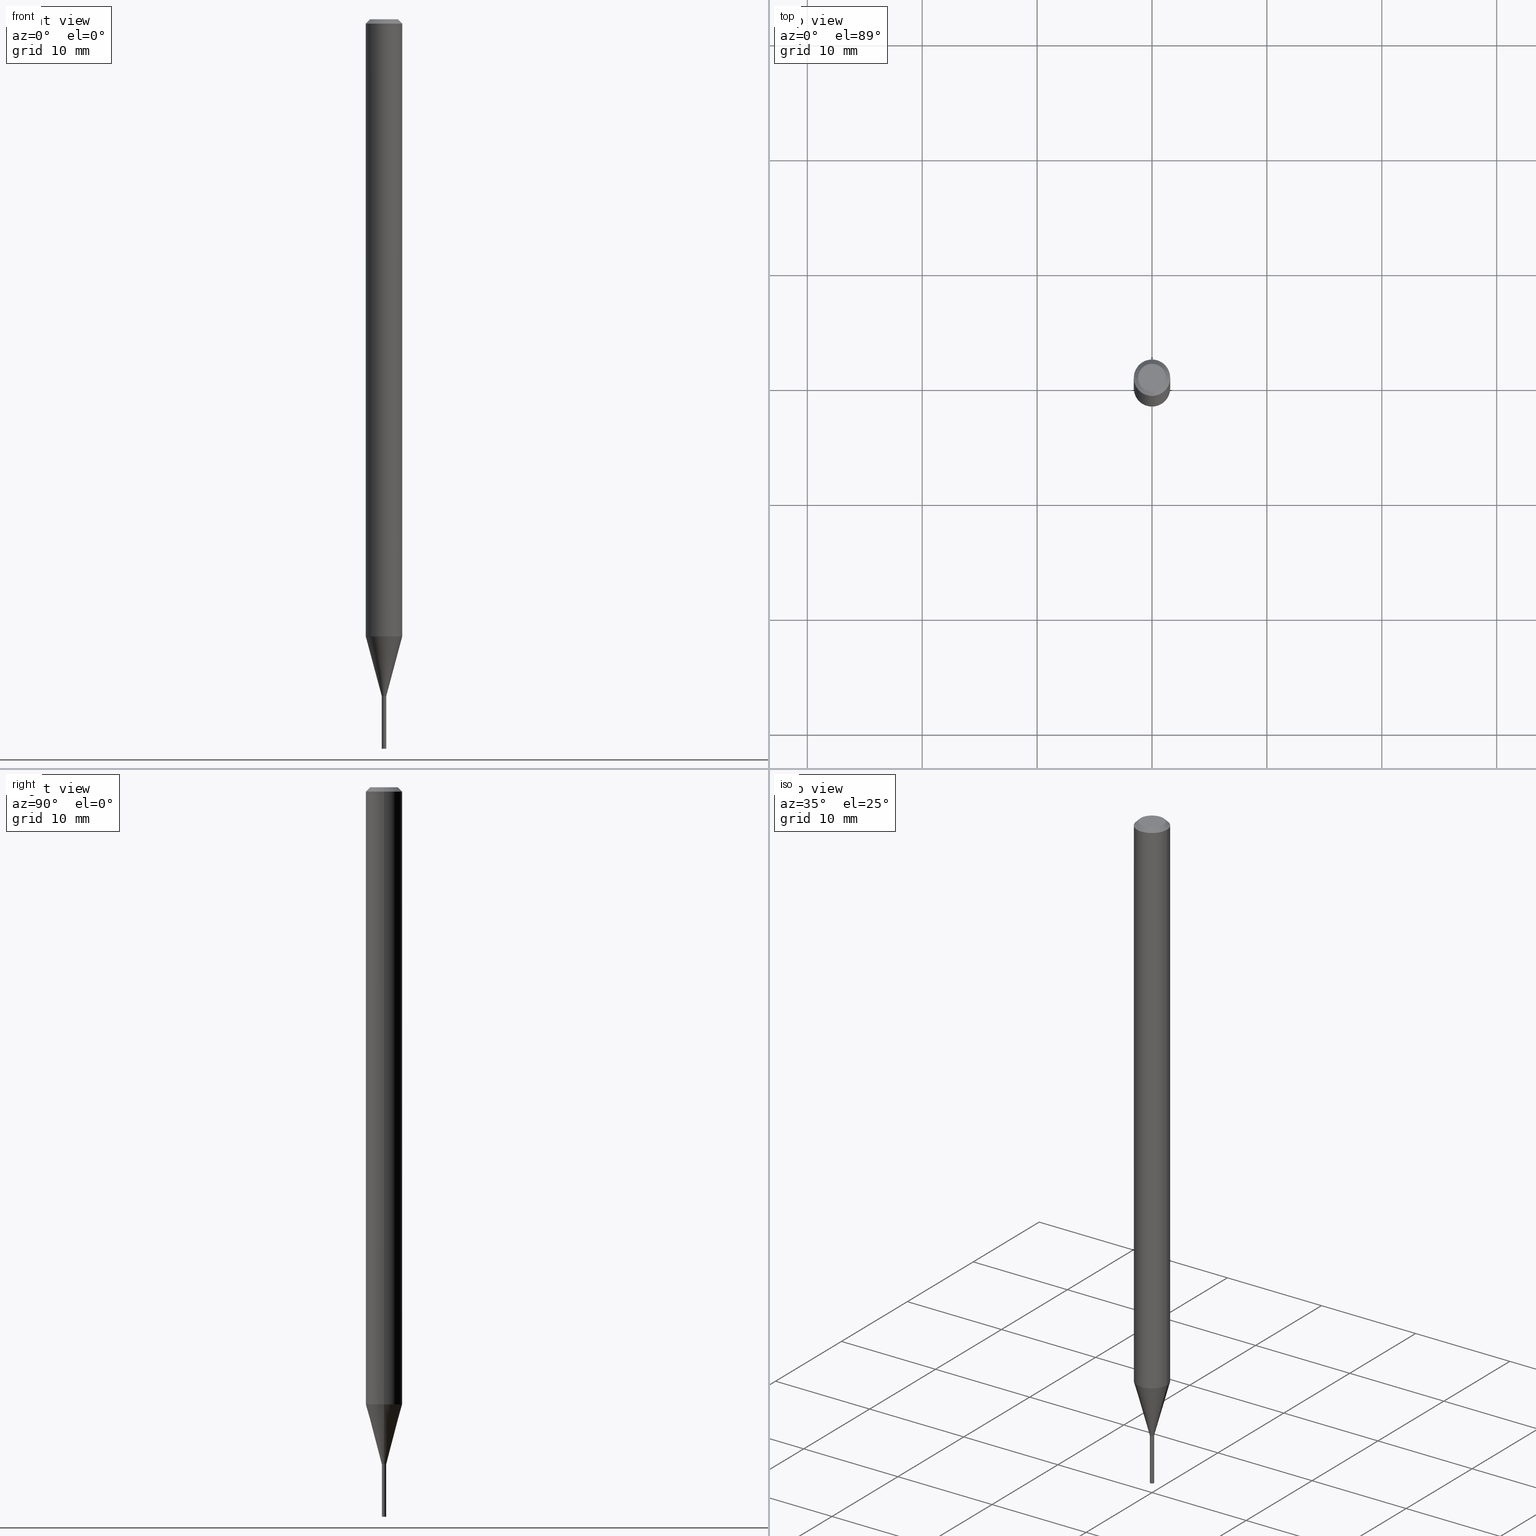
[diagram: canonical four-view strip — front | top / right | iso, engineering-drawing reading convention]
A machine part, canonical four-view strip (front | top / right | iso — engineering-drawing reading convention). The complete STEP part file that produces these views, byte-faithful:
ISO-10303-21;
HEADER;
FILE_DESCRIPTION (( 'STEP AP203' ),
    '1' );
FILE_NAME ('01284.STEP',
    '2024-03-20T01:00:24',
    ( '' ),
    ( '' ),
    'SwSTEP 2.0',
    'SolidWorks 2023',
    '' );
FILE_SCHEMA (( 'CONFIG_CONTROL_DESIGN' ));
ENDSEC;

DATA;
#1 = LINE ( 'NONE', #72, #92 ) ;
#2 = AXIS2_PLACEMENT_3D ( 'NONE', #395, #88, #362 ) ;
#3 = DIRECTION ( 'NONE',  ( -2.438088387897960049E-29, 3.491481338843145188E-15, 1.000000000000000000 ) ) ;
#4 = ORIENTED_EDGE ( 'NONE', *, *, #237, .T. ) ;
#5 = EDGE_CURVE ( 'NONE', #52, #48, #366, .T. ) ;
#6 = ORIENTED_EDGE ( 'NONE', *, *, #412, .T. ) ;
#7 = DESIGN_CONTEXT ( 'detailed design', #56, 'design' ) ;
#8 = ADVANCED_BREP_SHAPE_REPRESENTATION ( '01284', ( #394, #238, #276 ), #250 ) ;
#9 = ORIENTED_EDGE ( 'NONE', *, *, #178, .F. ) ;
#10 = CLOSED_SHELL ( 'NONE', ( #400, #359, #355, #435, #353, #138, #390, #71, #195, #382, #160, #449 ) ) ;
#11 = CC_DESIGN_PERSON_AND_ORGANIZATION_ASSIGNMENT ( #380, #137, ( #49 ) ) ;
#12 = CARTESIAN_POINT ( 'NONE',  ( -6.929522310536673502E-44, 9.893521345740843452E-30, 2.833617134273135482E-15 ) ) ;
#13 = ORIENTED_EDGE ( 'NONE', *, *, #450, .F. ) ;
#14 = EDGE_CURVE ( 'NONE', #329, #48, #350, .T. ) ;
#15 = ORIENTED_EDGE ( 'NONE', *, *, #450, .T. ) ;
#16 = CARTESIAN_POINT ( 'NONE',  ( -0.06250000000000000000, -6.939476280002764549E-15, -2.114737205583710811 ) ) ;
#17 = ORIENTED_EDGE ( 'NONE', *, *, #304, .F. ) ;
#18 = CC_DESIGN_APPROVAL ( #397, ( #333 ) ) ;
#19 = DIRECTION ( 'NONE',  ( 0.000000000000000000, 0.000000000000000000, 1.000000000000000000 ) ) ;
#20 = CARTESIAN_POINT ( 'NONE',  ( 5.673487630349515918E-29, -8.100236706116096837E-15, -2.319999999999999840 ) ) ;
#21 = DIRECTION ( 'NONE',  ( -1.000000000000000000, 6.982962677686266711E-15, 0.000000000000000000 ) ) ;
#22 = CARTESIAN_POINT ( 'NONE',  ( 0.000000000000000000, 0.000000000000000000, 0.000000000000000000 ) ) ;
#23 = AXIS2_PLACEMENT_3D ( 'NONE', #180, #3, #187 ) ;
#24 = FACE_OUTER_BOUND ( 'NONE', #191, .T. ) ;
#25 = CARTESIAN_POINT ( 'NONE',  ( 5.673487630349517039E-29, -8.100236706116098414E-15, -2.320000000000000284 ) ) ;
#26 = FACE_OUTER_BOUND ( 'NONE', #297, .T. ) ;
#27 = CARTESIAN_POINT ( 'NONE',  ( 5.673487630349515918E-29, -8.100236706116096837E-15, -2.319999999999999840 ) ) ;
#28 = APPROVAL_STATUS ( 'not_yet_approved' ) ;
#29 = CLOSED_SHELL ( 'NONE', ( #170, #418, #332, #176 ) ) ;
#30 = DIRECTION ( 'NONE',  ( -2.445468806185136597E-29, 3.491481338843145583E-15, 1.000000000000000000 ) ) ;
#31 = AXIS2_PLACEMENT_3D ( 'NONE', #226, #190, #328 ) ;
#32 = APPLICATION_CONTEXT ( 'configuration controlled 3d designs of mechanical parts and assemblies' ) ;
#33 = EDGE_LOOP ( 'NONE', ( #91, #420 ) ) ;
#34 = APPROVAL_ROLE ( '' ) ;
#35 = ORIENTED_EDGE ( 'NONE', *, *, #376, .T. ) ;
#36 = CARTESIAN_POINT ( 'NONE',  ( -0.007499999999999999722, -8.361179321429973723E-15, -2.320000000000000284 ) ) ;
#37 = PERSON_AND_ORGANIZATION_ROLE ( 'design_supplier' ) ;
#38 = DIRECTION ( 'NONE',  ( 0.7071067811864807373, -7.319954787623030431E-15, -0.7071067811866142971 ) ) ;
#39 = APPROVAL_PERSON_ORGANIZATION ( #175, #284, #246 ) ;
#40 = CIRCLE ( 'NONE', #224, 0.04749999999999999362 ) ;
#41 = PLANE ( 'NONE',  #2 ) ;
#42 = ORIENTED_EDGE ( 'NONE', *, *, #171, .F. ) ;
#43 = CC_DESIGN_DATE_AND_TIME_ASSIGNMENT ( #455, #313, ( #80 ) ) ;
#44 = CARTESIAN_POINT ( 'NONE',  ( 5.171523869534089269E-29, -7.383565489852826376E-15, -2.114737205583710811 ) ) ;
#45 = VERTEX_POINT ( 'NONE', #194 ) ;
#46 = CC_DESIGN_PERSON_AND_ORGANIZATION_ASSIGNMENT ( #466, #113, ( #333 ) ) ;
#47 = EDGE_CURVE ( 'NONE', #114, #440, #306, .T. ) ;
#48 = VERTEX_POINT ( 'NONE', #207 ) ;
#49 = SECURITY_CLASSIFICATION ( '', '', #249 ) ;
#50 = VECTOR ( 'NONE', #127, 39.37007874015748143 ) ;
#51 = DIRECTION ( 'NONE',  ( -2.445468806185136597E-29, 3.491481338843145583E-15, 1.000000000000000000 ) ) ;
#52 = VERTEX_POINT ( 'NONE', #371 ) ;
#53 = LENGTH_MEASURE_WITH_UNIT ( LENGTH_MEASURE( 0.02539999999999999897 ), #61 );
#54 = DIRECTION ( 'NONE',  ( 1.000000000000000000, -6.982962677686207546E-15, 0.000000000000000000 ) ) ;
#55 = DIRECTION ( 'NONE',  ( -2.445468806185136597E-29, 3.491481338843145583E-15, 1.000000000000000000 ) ) ;
#56 = APPLICATION_CONTEXT ( 'configuration controlled 3d designs of mechanical parts and assemblies' ) ;
#57 = LINE ( 'NONE', #272, #464 ) ;
#58 = CYLINDRICAL_SURFACE ( 'NONE', #289, 0.007499999999999999722 ) ;
#59 = DIRECTION ( 'NONE',  ( -2.445468806185136597E-29, 3.491481338843145583E-15, 1.000000000000000000 ) ) ;
#60 = DIRECTION ( 'NONE',  ( 1.000000000000000000, -6.982962677686207546E-15, 0.000000000000000000 ) ) ;
#61 =( LENGTH_UNIT ( ) NAMED_UNIT ( * ) SI_UNIT ( $, .METRE. ) );
#62 = CARTESIAN_POINT ( 'NONE',  ( 3.668203209277705088E-31, -5.237222008264718399E-17, -0.01499999999999999944 ) ) ;
#63 = LINE ( 'NONE', #330, #254 ) ;
#64 = MECHANICAL_CONTEXT ( 'NONE', #32, 'mechanical' ) ;
#65 = ORIENTED_EDGE ( 'NONE', *, *, #95, .T. ) ;
#66 = AXIS2_PLACEMENT_3D ( 'NONE', #20, #338, #301 ) ;
#67 = AXIS2_PLACEMENT_3D ( 'NONE', #447, #374, #241 ) ;
#68 = EDGE_LOOP ( 'NONE', ( #189, #432, #15, #389 ) ) ;
#69 = COORDINATED_UNIVERSAL_TIME_OFFSET ( 5, 0, .BEHIND. ) ;
#70 = ORGANIZATION ( 'UNSPECIFIED', 'UNSPECIFIED', '' ) ;
#71 = ADVANCED_FACE ( 'NONE', ( #311 ), #387, .T. ) ;
#72 = CARTESIAN_POINT ( 'NONE',  ( 0.007499999999999647574, -8.152608926198741944E-15, -2.320000000000000284 ) ) ;
#73 = CIRCLE ( 'NONE', #142, 0.007499999999999647574 ) ;
#74 = DATE_TIME_ROLE ( 'classification_date' ) ;
#75 = EDGE_LOOP ( 'NONE', ( #42, #17 ) ) ;
#76 = ORIENTED_EDGE ( 'NONE', *, *, #47, .T. ) ;
#77 = DIRECTION ( 'NONE',  ( -2.445468806185136597E-29, 3.491481338843145583E-15, 1.000000000000000000 ) ) ;
#78 = ORIENTED_EDGE ( 'NONE', *, *, #215, .T. ) ;
#79 = VECTOR ( 'NONE', #38, 39.37007874015748143 ) ;
#80 = PRODUCT_DEFINITION ( 'UNKNOWN', '', #333, #7 ) ;
#81 = CARTESIAN_POINT ( 'NONE',  ( 0.007499999999999649308, -8.150863185529322807E-15, -2.319500000000000117 ) ) ;
#82 = CARTESIAN_POINT ( 'NONE',  ( 0.06250000000000000000, -7.820000657208219623E-15, -2.114737205583710811 ) ) ;
#83 = ORIENTED_EDGE ( 'NONE', *, *, #171, .T. ) ;
#84 = CIRCLE ( 'NONE', #144, 0.007499999999999649308 ) ;
#85 = VECTOR ( 'NONE', #200, 39.37007874015748143 ) ;
#86 = CARTESIAN_POINT ( 'NONE',  ( -0.006999999999999999278, -8.050498714612890568E-15, -2.319999999999999840 ) ) ;
#87 = ORIENTED_EDGE ( 'NONE', *, *, #192, .F. ) ;
#88 = DIRECTION ( 'NONE',  ( 2.438088387897960049E-29, -3.491481338843145188E-15, -1.000000000000000000 ) ) ;
#89 = ORIENTED_EDGE ( 'NONE', *, *, #115, .T. ) ;
#90 = DIRECTION ( 'NONE',  ( 1.000000000000000000, -6.982962677686266711E-15, 4.876176775795935793E-29 ) ) ;
#91 = ORIENTED_EDGE ( 'NONE', *, *, #208, .T. ) ;
#92 = VECTOR ( 'NONE', #247, 39.37007874015748854 ) ;
#93 = CARTESIAN_POINT ( 'NONE',  ( 5.672264895946425359E-29, -8.098490965446677700E-15, -2.319500000000000117 ) ) ;
#94 = CARTESIAN_POINT ( 'NONE',  ( 6.113672015462842613E-29, -8.728703347107864943E-15, -2.500000000000000000 ) ) ;
#95 = EDGE_CURVE ( 'NONE', #114, #349, #73, .T. ) ;
#96 = CYLINDRICAL_SURFACE ( 'NONE', #377, 0.06250000000000000000 ) ;
#97 = CARTESIAN_POINT ( 'NONE',  ( 0.06250000000000000000, -4.888073874380388472E-16, -0.01499999999999999944 ) ) ;
#98 = DIRECTION ( 'NONE',  ( -1.000000000000000000, 6.982962677686265922E-15, -4.876176775795935793E-29 ) ) ;
#99 = DIRECTION ( 'NONE',  ( 1.000000000000000000, -6.982962677686265922E-15, 4.876176775795935232E-29 ) ) ;
#100 = DIRECTION ( 'NONE',  ( 1.000000000000000000, -6.982962677686333764E-15, 0.000000000000000000 ) ) ;
#101 = FACE_OUTER_BOUND ( 'NONE', #436, .T. ) ;
#102 = EDGE_CURVE ( 'NONE', #363, #177, #309, .T. ) ;
#103 = DIRECTION ( 'NONE',  ( 1.000000000000000000, -6.982962677686265922E-15, 4.876176775795935232E-29 ) ) ;
#104 = AXIS2_PLACEMENT_3D ( 'NONE', #235, #365, #100 ) ;
#105 = APPROVAL_STATUS ( 'not_yet_approved' ) ;
#106 = AXIS2_PLACEMENT_3D ( 'NONE', #269, #193, #243 ) ;
#107 = FACE_OUTER_BOUND ( 'NONE', #75, .T. ) ;
#108 = DATE_AND_TIME ( #282, #283 ) ;
#109 = CC_DESIGN_PERSON_AND_ORGANIZATION_ASSIGNMENT ( #415, #37, ( #333 ) ) ;
#110 = ORIENTED_EDGE ( 'NONE', *, *, #237, .F. ) ;
#111 = DATE_AND_TIME ( #419, #348 ) ;
#112 = ORIENTED_EDGE ( 'NONE', *, *, #438, .F. ) ;
#113 = PERSON_AND_ORGANIZATION_ROLE ( 'creator' ) ;
#114 = VERTEX_POINT ( 'NONE', #302 ) ;
#115 = EDGE_CURVE ( 'NONE', #440, #434, #375, .T. ) ;
#116 = AXIS2_PLACEMENT_3D ( 'NONE', #410, #196, #166 ) ;
#117 = EDGE_LOOP ( 'NONE', ( #159, #78, #217, #120 ) ) ;
#118 = ORIENTED_EDGE ( 'NONE', *, *, #102, .T. ) ;
#119 = CIRCLE ( 'NONE', #203, 0.06250000000000000000 ) ;
#120 = ORIENTED_EDGE ( 'NONE', *, *, #5, .F. ) ;
#121 = AXIS2_PLACEMENT_3D ( 'NONE', #298, #408, #99 ) ;
#122 = DIRECTION ( 'NONE',  ( 1.000000000000000000, -6.982962677686266711E-15, 0.000000000000000000 ) ) ;
#123 = ORIENTED_EDGE ( 'NONE', *, *, #255, .T. ) ;
#124 = CARTESIAN_POINT ( 'NONE',  ( 0.007499999999999649308, -5.237222008264454623E-17, 3.657132581846780536E-31 ) ) ;
#125 = ORIENTED_EDGE ( 'NONE', *, *, #288, .T. ) ;
#126 = CYLINDRICAL_SURFACE ( 'NONE', #116, 0.007499999999999999722 ) ;
#127 = DIRECTION ( 'NONE',  ( -2.445468806185136877E-29, 3.491481338843145188E-15, 1.000000000000000000 ) ) ;
#128 = VECTOR ( 'NONE', #399, 39.37007874015748143 ) ;
#129 = FACE_OUTER_BOUND ( 'NONE', #323, .T. ) ;
#130 = CC_DESIGN_PERSON_AND_ORGANIZATION_ASSIGNMENT ( #212, #174, ( #80 ) ) ;
#131 = PLANE ( 'NONE',  #173 ) ;
#132 = DIRECTION ( 'NONE',  ( 1.000000000000000000, -6.982962677686333764E-15, 0.000000000000000000 ) ) ;
#133 = CARTESIAN_POINT ( 'NONE',  ( 5.673487630349517039E-29, -8.100236706116098414E-15, -2.320000000000000284 ) ) ;
#134 = AXIS2_PLACEMENT_3D ( 'NONE', #27, #404, #167 ) ;
#135 = AXIS2_PLACEMENT_3D ( 'NONE', #296, #77, #122 ) ;
#136 = DIRECTION ( 'NONE',  ( -2.445468806185136597E-29, 3.491481338843145583E-15, 1.000000000000000000 ) ) ;
#137 = PERSON_AND_ORGANIZATION_ROLE ( 'classification_officer' ) ;
#138 = ADVANCED_FACE ( 'NONE', ( #448 ), #461, .T. ) ;
#139 = PLANE ( 'NONE',  #260 ) ;
#140 = PRODUCT_RELATED_PRODUCT_CATEGORY ( 'detail', '', ( #459 ) ) ;
#141 = APPROVAL_ROLE ( '' ) ;
#142 = AXIS2_PLACEMENT_3D ( 'NONE', #133, #165, #60 ) ;
#143 = COORDINATED_UNIVERSAL_TIME_OFFSET ( 5, 0, .BEHIND. ) ;
#144 = AXIS2_PLACEMENT_3D ( 'NONE', #93, #30, #368 ) ;
#145 = CC_DESIGN_PERSON_AND_ORGANIZATION_ASSIGNMENT ( #280, #458, ( #459 ) ) ;
#146 = ORIENTED_EDGE ( 'NONE', *, *, #208, .F. ) ;
#147 = COORDINATED_UNIVERSAL_TIME_OFFSET ( 5, 0, .BEHIND. ) ;
#148 = LOCAL_TIME ( 21, 0, 24.00000000000000000, #143 ) ;
#149 = EDGE_LOOP ( 'NONE', ( #185, #225 ) ) ;
#150 = ORIENTED_EDGE ( 'NONE', *, *, #102, .F. ) ;
#151 = DIRECTION ( 'NONE',  ( 1.000000000000000000, -6.982962677686267499E-15, 5.108144071313017768E-29 ) ) ;
#152 = EDGE_LOOP ( 'NONE', ( #155, #146, #172, #4 ) ) ;
#153 = AXIS2_PLACEMENT_3D ( 'NONE', #340, #236, #21 ) ;
#154 = LINE ( 'NONE', #320, #79 ) ;
#155 = ORIENTED_EDGE ( 'NONE', *, *, #215, .F. ) ;
#156 = DIRECTION ( 'NONE',  ( -2.445468806185136597E-29, 3.491481338843145583E-15, 1.000000000000000000 ) ) ;
#157 = ORIENTED_EDGE ( 'NONE', *, *, #255, .F. ) ;
#158 = CARTESIAN_POINT ( 'NONE',  ( 0.007499999999999647574, -8.152608926198741944E-15, -2.320000000000000284 ) ) ;
#159 = ORIENTED_EDGE ( 'NONE', *, *, #214, .F. ) ;
#160 = ADVANCED_FACE ( 'NONE', ( #101 ), #426, .T. ) ;
#161 = DIRECTION ( 'NONE',  ( 1.000000000000000000, 0.000000000000000000, 0.000000000000000000 ) ) ;
#162 = FACE_OUTER_BOUND ( 'NONE', #117, .T. ) ;
#163 = FACE_OUTER_BOUND ( 'NONE', #149, .T. ) ;
#164 = CARTESIAN_POINT ( 'NONE',  ( 5.673487630349515918E-29, -8.100236706116096837E-15, -2.319999999999999840 ) ) ;
#165 = DIRECTION ( 'NONE',  ( -2.445468806185136597E-29, 3.491481338843145583E-15, 1.000000000000000000 ) ) ;
#166 = DIRECTION ( 'NONE',  ( 1.000000000000000000, -6.982962677686267499E-15, 4.876176775795936353E-29 ) ) ;
#167 = DIRECTION ( 'NONE',  ( 1.000000000000000000, -6.982962677686333764E-15, 0.000000000000000000 ) ) ;
#168 = APPROVAL_DATE_TIME ( #220, #291 ) ;
#169 = DIRECTION ( 'NONE',  ( -2.445468806185136597E-29, 3.491481338843145583E-15, 1.000000000000000000 ) ) ;
#170 = ADVANCED_FACE ( 'NONE', ( #242 ), #58, .T. ) ;
#171 = EDGE_CURVE ( 'NONE', #327, #363, #179, .T. ) ;
#172 = ORIENTED_EDGE ( 'NONE', *, *, #5, .T. ) ;
#173 = AXIS2_PLACEMENT_3D ( 'NONE', #273, #406, #98 ) ;
#174 = PERSON_AND_ORGANIZATION_ROLE ( 'creator' ) ;
#175 = PERSON_AND_ORGANIZATION ( #285, #70 ) ;
#176 = ADVANCED_FACE ( 'NONE', ( #163 ), #131, .F. ) ;
#177 = VERTEX_POINT ( 'NONE', #36 ) ;
#178 = EDGE_CURVE ( 'NONE', #290, #48, #354, .T. ) ;
#179 = CIRCLE ( 'NONE', #343, 0.007499999999999999722 ) ;
#180 = CARTESIAN_POINT ( 'NONE',  ( 6.194428952736783458E-29, -8.613054816532157721E-15, -2.500000000000000000 ) ) ;
#181 = CARTESIAN_POINT ( 'NONE',  ( -0.06250000000000000000, 4.440892098500626162E-16, -3.074334431409316114E-30 ) ) ;
#182 = DIRECTION ( 'NONE',  ( -2.445468806185136597E-29, 3.491481338843145583E-15, 1.000000000000000000 ) ) ;
#183 = CONICAL_SURFACE ( 'NONE', #245, 0.007499999999999647574, 0.2617993877991499074 ) ;
#184 = CARTESIAN_POINT ( 'NONE',  ( -6.929522310536673502E-44, 9.893521345740843452E-30, 2.833617134273135482E-15 ) ) ;
#185 = ORIENTED_EDGE ( 'NONE', *, *, #279, .T. ) ;
#186 = CARTESIAN_POINT ( 'NONE',  ( -0.06250000000000000000, 3.840629472727444916E-16, -0.01499999999999999944 ) ) ;
#187 = DIRECTION ( 'NONE',  ( 1.000000000000000000, -6.982962677686265922E-15, 4.876176775795935793E-29 ) ) ;
#188 = DIRECTION ( 'NONE',  ( -2.445468806185136877E-29, 3.491481338843145188E-15, 1.000000000000000000 ) ) ;
#189 = ORIENTED_EDGE ( 'NONE', *, *, #47, .F. ) ;
#190 = DIRECTION ( 'NONE',  ( -2.445468806185136597E-29, 3.491481338843145583E-15, 1.000000000000000000 ) ) ;
#191 = EDGE_LOOP ( 'NONE', ( #222, #252 ) ) ;
#192 = EDGE_CURVE ( 'NONE', #248, #329, #388, .T. ) ;
#193 = DIRECTION ( 'NONE',  ( -2.445468806185136597E-29, 3.491481338843145583E-15, 1.000000000000000000 ) ) ;
#194 = CARTESIAN_POINT ( 'NONE',  ( -0.006999999999999999278, -8.047849487438780156E-15, -2.319999999999999840 ) ) ;
#195 = ADVANCED_FACE ( 'NONE', ( #294 ), #41, .F. ) ;
#196 = DIRECTION ( 'NONE',  ( -2.445468806185136597E-29, 3.491481338843145583E-15, 1.000000000000000000 ) ) ;
#197 = DIRECTION ( 'NONE',  ( 1.000000000000000000, -6.982962677686268288E-15, 0.000000000000000000 ) ) ;
#198 = APPROVAL_PERSON_ORGANIZATION ( #318, #291, #34 ) ;
#199 = VECTOR ( 'NONE', #202, 39.37007874015748143 ) ;
#200 = DIRECTION ( 'NONE',  ( -2.445468806185136877E-29, 3.491481338843145188E-15, 1.000000000000000000 ) ) ;
#201 = CYLINDRICAL_SURFACE ( 'NONE', #253, 0.06250000000000000000 ) ;
#202 = DIRECTION ( 'NONE',  ( -2.445468806185136877E-29, 3.491481338843145188E-15, 1.000000000000000000 ) ) ;
#203 = AXIS2_PLACEMENT_3D ( 'NONE', #44, #156, #439 ) ;
#204 = AXIS2_PLACEMENT_3D ( 'NONE', #232, #403, #132 ) ;
#205 =( CONVERSION_BASED_UNIT ( 'INCH', #53 ) LENGTH_UNIT ( ) NAMED_UNIT ( #322 ) );
#206 = CARTESIAN_POINT ( 'NONE',  ( 5.673487630349517039E-29, -8.100236706116098414E-15, -2.320000000000000284 ) ) ;
#207 = CARTESIAN_POINT ( 'NONE',  ( -0.06250000000000000000, -3.273879645117674703E-15, -0.01499999999999999944 ) ) ;
#208 = EDGE_CURVE ( 'NONE', #52, #401, #409, .T. ) ;
#209 = DIRECTION ( 'NONE',  ( -2.445468806185136597E-29, 3.491481338843145583E-15, 1.000000000000000000 ) ) ;
#210 = DIRECTION ( 'NONE',  ( 2.445468806185136597E-29, -3.491481338843145583E-15, -1.000000000000000000 ) ) ;
#211 = VECTOR ( 'NONE', #188, 39.37007874015748143 ) ;
#212 = PERSON_AND_ORGANIZATION ( #285, #70 ) ;
#213 = AXIS2_PLACEMENT_3D ( 'NONE', #206, #59, #230 ) ;
#214 = EDGE_CURVE ( 'NONE', #401, #52, #40, .T. ) ;
#215 = EDGE_CURVE ( 'NONE', #401, #329, #154, .T. ) ;
#216 = PLANE ( 'NONE',  #23 ) ;
#217 = ORIENTED_EDGE ( 'NONE', *, *, #14, .T. ) ;
#218 = CC_DESIGN_APPROVAL ( #284, ( #49 ) ) ;
#219 = CC_DESIGN_DATE_AND_TIME_ASSIGNMENT ( #111, #74, ( #49 ) ) ;
#220 = DATE_AND_TIME ( #460, #148 ) ;
#221 = COORDINATED_UNIVERSAL_TIME_OFFSET ( 5, 0, .BEHIND. ) ;
#222 = ORIENTED_EDGE ( 'NONE', *, *, #288, .F. ) ;
#223 = LOCAL_TIME ( 21, 0, 24.00000000000000000, #286 ) ;
#224 = AXIS2_PLACEMENT_3D ( 'NONE', #184, #51, #151 ) ;
#225 = ORIENTED_EDGE ( 'NONE', *, *, #428, .T. ) ;
#226 = CARTESIAN_POINT ( 'NONE',  ( 5.171523869534089269E-29, -7.383565489852826376E-15, -2.114737205583710811 ) ) ;
#227 = EDGE_LOOP ( 'NONE', ( #287, #65, #6, #157 ) ) ;
#228 = EDGE_LOOP ( 'NONE', ( #463, #76, #89, #13 ) ) ;
#229 = EDGE_LOOP ( 'NONE', ( #83, #118, #425, #331 ) ) ;
#230 = DIRECTION ( 'NONE',  ( 1.000000000000000000, -6.982962677686268288E-15, 0.000000000000000000 ) ) ;
#231 = ORIENTED_EDGE ( 'NONE', *, *, #304, .T. ) ;
#232 = CARTESIAN_POINT ( 'NONE',  ( 5.673487630349515918E-29, -8.100236706116096837E-15, -2.319999999999999840 ) ) ;
#233 = DIRECTION ( 'NONE',  ( -2.445468806185136597E-29, 3.491481338843145583E-15, 1.000000000000000000 ) ) ;
#234 = CYLINDRICAL_SURFACE ( 'NONE', #121, 0.007499999999999649308 ) ;
#235 = CARTESIAN_POINT ( 'NONE',  ( 5.673487630349515918E-29, -8.100236706116096837E-15, -2.319999999999999840 ) ) ;
#236 = DIRECTION ( 'NONE',  ( 2.445468806185136597E-29, -3.491481338843145583E-15, -1.000000000000000000 ) ) ;
#237 = EDGE_CURVE ( 'NONE', #48, #329, #257, .T. ) ;
#238 = MANIFOLD_SOLID_BREP ( 'Body-Move/Copy2[2]', #10 ) ;
#239 = EDGE_CURVE ( 'NONE', #45, #440, #258, .T. ) ;
#240 = PRODUCT_DEFINITION_SHAPE ( 'NONE', 'NONE',  #80 ) ;
#241 = DIRECTION ( 'NONE',  ( 1.000000000000000000, -6.982962677686207546E-15, 0.000000000000000000 ) ) ;
#242 = FACE_OUTER_BOUND ( 'NONE', #229, .T. ) ;
#243 = DIRECTION ( 'NONE',  ( 1.000000000000000000, -6.982962677686268288E-15, 0.000000000000000000 ) ) ;
#244 = CALENDAR_DATE ( 2024, 19, 3 ) ;
#245 = AXIS2_PLACEMENT_3D ( 'NONE', #444, #334, #54 ) ;
#246 = APPROVAL_ROLE ( '' ) ;
#247 = DIRECTION ( 'NONE',  ( 0.2588190451025211836, 1.565188264969622559E-15, 0.9659258262890679791 ) ) ;
#248 = VERTEX_POINT ( 'NONE', #82 ) ;
#249 = SECURITY_CLASSIFICATION_LEVEL ( 'unclassified' ) ;
#250 =( GEOMETRIC_REPRESENTATION_CONTEXT ( 3 ) GLOBAL_UNCERTAINTY_ASSIGNED_CONTEXT ( ( #385 ) ) GLOBAL_UNIT_ASSIGNED_CONTEXT ( ( #205, #452, #413 ) ) REPRESENTATION_CONTEXT ( 'NONE', 'WORKASPACE' ) );
#251 = EDGE_CURVE ( 'NONE', #248, #290, #427, .T. ) ;
#252 = ORIENTED_EDGE ( 'NONE', *, *, #293, .F. ) ;
#253 = AXIS2_PLACEMENT_3D ( 'NONE', #336, #136, #90 ) ;
#254 = VECTOR ( 'NONE', #456, 39.37007874015748854 ) ;
#255 = EDGE_CURVE ( 'NONE', #290, #248, #119, .T. ) ;
#256 = ORIENTED_EDGE ( 'NONE', *, *, #412, .F. ) ;
#257 = CIRCLE ( 'NONE', #135, 0.06250000000000000000 ) ;
#258 = LINE ( 'NONE', #86, #268 ) ;
#259 = ORIENTED_EDGE ( 'NONE', *, *, #192, .T. ) ;
#260 = AXIS2_PLACEMENT_3D ( 'NONE', #164, #405, #370 ) ;
#261 = EDGE_LOOP ( 'NONE', ( #357, #429, #292, #256 ) ) ;
#262 = DIRECTION ( 'NONE',  ( -0.7071067811865642261, 7.493145998870414114E-15, 0.7071067811865309194 ) ) ;
#263 = ORIENTED_EDGE ( 'NONE', *, *, #251, .T. ) ;
#264 = CC_DESIGN_APPROVAL ( #291, ( #80 ) ) ;
#265 = DIRECTION ( 'NONE',  ( -2.445468806185136877E-29, 3.491481338843145188E-15, 1.000000000000000000 ) ) ;
#266 = VERTEX_POINT ( 'NONE', #314 ) ;
#267 = AXIS2_PLACEMENT_3D ( 'NONE', #12, #326, #392 ) ;
#268 = VECTOR ( 'NONE', #262, 39.37007874015748143 ) ;
#269 = CARTESIAN_POINT ( 'NONE',  ( 6.113672015462842613E-29, -8.728703347107864943E-15, -2.500000000000000000 ) ) ;
#270 = DIRECTION ( 'NONE',  ( 1.000000000000000000, -6.982962677686267499E-15, 4.876176775795936353E-29 ) ) ;
#271 = FACE_OUTER_BOUND ( 'NONE', #324, .T. ) ;
#272 = CARTESIAN_POINT ( 'NONE',  ( 0.007499999999999999722, -5.237222008264700526E-17, 3.657132581846952195E-31 ) ) ;
#273 = CARTESIAN_POINT ( 'NONE',  ( 5.237222008270372929E-17, 0.007499999999991899431, -2.320000000000000284 ) ) ;
#274 = FACE_OUTER_BOUND ( 'NONE', #68, .T. ) ;
#275 = DIRECTION ( 'NONE',  ( -2.445468806185136597E-29, 3.491481338843145583E-15, 1.000000000000000000 ) ) ;
#276 = AXIS2_PLACEMENT_3D ( 'NONE', #367, #19, #161 ) ;
#277 = AXIS2_PLACEMENT_3D ( 'NONE', #361, #55, #295 ) ;
#278 = FACE_OUTER_BOUND ( 'NONE', #228, .T. ) ;
#279 = EDGE_CURVE ( 'NONE', #316, #177, #303, .T. ) ;
#280 = PERSON_AND_ORGANIZATION ( #285, #70 ) ;
#281 = CARTESIAN_POINT ( 'NONE',  ( 0.007499999999999999722, -8.781075567190511627E-15, -2.500000000000000000 ) ) ;
#282 = CALENDAR_DATE ( 2024, 19, 3 ) ;
#283 = LOCAL_TIME ( 21, 0, 24.00000000000000000, #147 ) ;
#284 = APPROVAL ( #105, 'UNSPECIFIED' ) ;
#285 = PERSON ( 'UNSPECIFIED', 'UNSPECIFIED', 'UNSPECIFIED', ('UNSPECIFIED'), ('UNSPECIFIED'), ('UNSPECIFIED') ) ;
#286 = COORDINATED_UNIVERSAL_TIME_OFFSET ( 5, 0, .BEHIND. ) ;
#287 = ORIENTED_EDGE ( 'NONE', *, *, #344, .F. ) ;
#288 = EDGE_CURVE ( 'NONE', #266, #45, #430, .T. ) ;
#289 = AXIS2_PLACEMENT_3D ( 'NONE', #445, #443, #270 ) ;
#290 = VERTEX_POINT ( 'NONE', #16 ) ;
#291 = APPROVAL ( #28, 'UNSPECIFIED' ) ;
#292 = ORIENTED_EDGE ( 'NONE', *, *, #251, .F. ) ;
#293 = EDGE_CURVE ( 'NONE', #45, #266, #352, .T. ) ;
#294 = FACE_OUTER_BOUND ( 'NONE', #33, .T. ) ;
#295 = DIRECTION ( 'NONE',  ( 1.000000000000000000, -6.982962677686266711E-15, 0.000000000000000000 ) ) ;
#296 = CARTESIAN_POINT ( 'NONE',  ( 3.668203209277705088E-31, -5.237222008264718399E-17, -0.01499999999999999944 ) ) ;
#297 = EDGE_LOOP ( 'NONE', ( #150, #231, #35, #299 ) ) ;
#298 = CARTESIAN_POINT ( 'NONE',  ( 0.000000000000000000, 0.000000000000000000, 0.000000000000000000 ) ) ;
#299 = ORIENTED_EDGE ( 'NONE', *, *, #428, .F. ) ;
#300 = AXIS2_PLACEMENT_3D ( 'NONE', #25, #275, #411 ) ;
#301 = DIRECTION ( 'NONE',  ( 1.000000000000000000, -6.982962677686333764E-15, 0.000000000000000000 ) ) ;
#302 = CARTESIAN_POINT ( 'NONE',  ( -0.007499999999999647574, -7.493211140468429476E-15, -2.320000000000000284 ) ) ;
#303 = CIRCLE ( 'NONE', #213, 0.007499999999999999722 ) ;
#304 = EDGE_CURVE ( 'NONE', #363, #327, #416, .T. ) ;
#305 = CARTESIAN_POINT ( 'NONE',  ( -0.007499999999999999722, -8.361179321429973723E-15, -2.500000000000000000 ) ) ;
#306 = LINE ( 'NONE', #454, #50 ) ;
#307 = DIRECTION ( 'NONE',  ( 1.000000000000000000, -6.982962677686266711E-15, 4.876176775795935793E-29 ) ) ;
#308 = CARTESIAN_POINT ( 'NONE',  ( 0.000000000000000000, 0.000000000000000000, 0.000000000000000000 ) ) ;
#309 = LINE ( 'NONE', #369, #199 ) ;
#310 = FACE_OUTER_BOUND ( 'NONE', #261, .T. ) ;
#311 = FACE_OUTER_BOUND ( 'NONE', #152, .T. ) ;
#312 = APPROVAL_PERSON_ORGANIZATION ( #378, #397, #141 ) ;
#313 = DATE_TIME_ROLE ( 'creation_date' ) ;
#314 = CARTESIAN_POINT ( 'NONE',  ( 0.006999999999999999278, -8.149117444859902092E-15, -2.319999999999999840 ) ) ;
#315 = AXIS2_PLACEMENT_3D ( 'NONE', #308, #169, #103 ) ;
#316 = VERTEX_POINT ( 'NONE', #372 ) ;
#317 = APPLICATION_PROTOCOL_DEFINITION ( 'international standard', 'config_control_design', 1994, #56 ) ;
#318 = PERSON_AND_ORGANIZATION ( #285, #70 ) ;
#319 = EDGE_CURVE ( 'NONE', #349, #114, #339, .T. ) ;
#320 = CARTESIAN_POINT ( 'NONE',  ( 0.06250000000000000000, -4.811533449433679005E-16, -0.01499999999999999944 ) ) ;
#321 = EDGE_LOOP ( 'NONE', ( #9, #123, #259, #110 ) ) ;
#322 = DIMENSIONAL_EXPONENTS ( 1.000000000000000000, 0.000000000000000000, 0.000000000000000000, 0.000000000000000000, 0.000000000000000000, 0.000000000000000000, 0.000000000000000000 ) ;
#323 = EDGE_LOOP ( 'NONE', ( #125, #396, #383, #112 ) ) ;
#324 = EDGE_LOOP ( 'NONE', ( #263, #384, #358, #87 ) ) ;
#325 = AXIS2_PLACEMENT_3D ( 'NONE', #373, #335, #337 ) ;
#326 = DIRECTION ( 'NONE',  ( -2.445468806185136597E-29, 3.491481338843145583E-15, 1.000000000000000000 ) ) ;
#327 = VERTEX_POINT ( 'NONE', #281 ) ;
#328 = DIRECTION ( 'NONE',  ( 1.000000000000000000, -6.982962677686262766E-15, 0.000000000000000000 ) ) ;
#329 = VERTEX_POINT ( 'NONE', #97 ) ;
#330 = CARTESIAN_POINT ( 'NONE',  ( -0.007499999999999647574, -8.046946000934093614E-15, -2.320000000000000284 ) ) ;
#331 = ORIENTED_EDGE ( 'NONE', *, *, #376, .F. ) ;
#332 = ADVANCED_FACE ( 'NONE', ( #26 ), #126, .T. ) ;
#333 = PRODUCT_DEFINITION_FORMATION_WITH_SPECIFIED_SOURCE ( 'ANY', '', #459, .NOT_KNOWN. ) ;
#334 = DIRECTION ( 'NONE',  ( -2.445468806185136597E-29, 3.491481338843145583E-15, 1.000000000000000000 ) ) ;
#335 = DIRECTION ( 'NONE',  ( -2.445468806185136597E-29, 3.491481338843145583E-15, 1.000000000000000000 ) ) ;
#336 = CARTESIAN_POINT ( 'NONE',  ( 0.000000000000000000, 0.000000000000000000, 0.000000000000000000 ) ) ;
#337 = DIRECTION ( 'NONE',  ( 1.000000000000000000, -6.982962677686205968E-15, 0.000000000000000000 ) ) ;
#338 = DIRECTION ( 'NONE',  ( -2.445468806185136597E-29, 3.491481338843145583E-15, 1.000000000000000000 ) ) ;
#339 = CIRCLE ( 'NONE', #67, 0.007499999999999647574 ) ;
#340 = CARTESIAN_POINT ( 'NONE',  ( 3.668203209277705088E-31, -5.237222008264718399E-17, -0.01499999999999999944 ) ) ;
#341 = LINE ( 'NONE', #441, #128 ) ;
#342 = DIRECTION ( 'NONE',  ( -2.445468806185136877E-29, 3.491481338843145188E-15, 1.000000000000000000 ) ) ;
#343 = AXIS2_PLACEMENT_3D ( 'NONE', #94, #233, #197 ) ;
#344 = EDGE_CURVE ( 'NONE', #114, #290, #63, .T. ) ;
#345 = APPROVAL_DATE_TIME ( #108, #284 ) ;
#346 = AXIS2_PLACEMENT_3D ( 'NONE', #356, #182, #433 ) ;
#347 = APPROVAL_STATUS ( 'not_yet_approved' ) ;
#348 = LOCAL_TIME ( 21, 0, 24.00000000000000000, #69 ) ;
#349 = VERTEX_POINT ( 'NONE', #158 ) ;
#350 = CIRCLE ( 'NONE', #277, 0.06250000000000000000 ) ;
#351 = SHAPE_DEFINITION_REPRESENTATION ( #240, #8 ) ;
#352 = CIRCLE ( 'NONE', #104, 0.006999999999999999278 ) ;
#353 = ADVANCED_FACE ( 'NONE', ( #310 ), #183, .T. ) ;
#354 = LINE ( 'NONE', #181, #398 ) ;
#355 = ADVANCED_FACE ( 'NONE', ( #162 ), #457, .T. ) ;
#356 = CARTESIAN_POINT ( 'NONE',  ( 5.673487630349517039E-29, -8.100236706116098414E-15, -2.320000000000000284 ) ) ;
#357 = ORIENTED_EDGE ( 'NONE', *, *, #319, .T. ) ;
#358 = ORIENTED_EDGE ( 'NONE', *, *, #14, .F. ) ;
#359 = ADVANCED_FACE ( 'NONE', ( #129 ), #391, .T. ) ;
#360 = EDGE_CURVE ( 'NONE', #434, #440, #84, .T. ) ;
#361 = CARTESIAN_POINT ( 'NONE',  ( 3.668203209277705088E-31, -5.237222008264718399E-17, -0.01499999999999999944 ) ) ;
#362 = DIRECTION ( 'NONE',  ( -1.000000000000000000, 6.982962677686265922E-15, -4.876176775795935793E-29 ) ) ;
#363 = VERTEX_POINT ( 'NONE', #305 ) ;
#364 = LINE ( 'NONE', #124, #85 ) ;
#365 = DIRECTION ( 'NONE',  ( -2.445468806185136597E-29, 3.491481338843145583E-15, 1.000000000000000000 ) ) ;
#366 = LINE ( 'NONE', #186, #381 ) ;
#367 = CARTESIAN_POINT ( 'NONE',  ( 0.000000000000000000, 0.000000000000000000, 0.000000000000000000 ) ) ;
#368 = DIRECTION ( 'NONE',  ( 1.000000000000000000, -6.982962677686205968E-15, 0.000000000000000000 ) ) ;
#369 = CARTESIAN_POINT ( 'NONE',  ( -0.007499999999999999722, 5.329070518200751197E-17, -3.689201317691179266E-31 ) ) ;
#370 = DIRECTION ( 'NONE',  ( 1.000000000000000000, -6.982962677686265922E-15, 4.876176775795935793E-29 ) ) ;
#371 = CARTESIAN_POINT ( 'NONE',  ( -0.04749999999999999362, 3.578768372314260303E-16, 2.833617134273133115E-15 ) ) ;
#372 = CARTESIAN_POINT ( 'NONE',  ( 0.007499999999999999722, -8.152608926198745099E-15, -2.320000000000000284 ) ) ;
#373 = CARTESIAN_POINT ( 'NONE',  ( 5.672264895946425359E-29, -8.098490965446677700E-15, -2.319500000000000117 ) ) ;
#374 = DIRECTION ( 'NONE',  ( -2.445468806185136597E-29, 3.491481338843145583E-15, 1.000000000000000000 ) ) ;
#375 = CIRCLE ( 'NONE', #325, 0.007499999999999649308 ) ;
#376 = EDGE_CURVE ( 'NONE', #327, #316, #57, .T. ) ;
#377 = AXIS2_PLACEMENT_3D ( 'NONE', #22, #209, #307 ) ;
#378 = PERSON_AND_ORGANIZATION ( #285, #70 ) ;
#379 = ORIENTED_EDGE ( 'NONE', *, *, #239, .F. ) ;
#380 = PERSON_AND_ORGANIZATION ( #285, #70 ) ;
#381 = VECTOR ( 'NONE', #393, 39.37007874015748143 ) ;
#382 = ADVANCED_FACE ( 'NONE', ( #24 ), #139, .F. ) ;
#383 = ORIENTED_EDGE ( 'NONE', *, *, #360, .F. ) ;
#384 = ORIENTED_EDGE ( 'NONE', *, *, #178, .T. ) ;
#385 = UNCERTAINTY_MEASURE_WITH_UNIT (LENGTH_MEASURE( 1.000000000000000082E-05 ), #205, 'distance_accuracy_value', 'NONE');
#386 = ORIENTED_EDGE ( 'NONE', *, *, #438, .T. ) ;
#387 = CONICAL_SURFACE ( 'NONE', #153, 0.06250000000000000000, 0.7853981633973539100 ) ;
#388 = LINE ( 'NONE', #431, #211 ) ;
#389 = ORIENTED_EDGE ( 'NONE', *, *, #360, .T. ) ;
#390 = ADVANCED_FACE ( 'NONE', ( #453 ), #201, .T. ) ;
#391 = CONICAL_SURFACE ( 'NONE', #204, 0.006999999999999999278, 0.7853981633974718157 ) ;
#392 = DIRECTION ( 'NONE',  ( 1.000000000000000000, -6.982962677686267499E-15, 5.108144071313017768E-29 ) ) ;
#393 = DIRECTION ( 'NONE',  ( -0.7071067811864807373, 2.468850131081557341E-15, -0.7071067811866142971 ) ) ;
#394 = MANIFOLD_SOLID_BREP ( 'Body-Move/Copy2[1]', #29 ) ;
#395 = CARTESIAN_POINT ( 'NONE',  ( 3.316907271900976096E-16, 0.04749999999999999362, 1.250963203541518394E-15 ) ) ;
#396 = ORIENTED_EDGE ( 'NONE', *, *, #239, .T. ) ;
#397 = APPROVAL ( #347, 'UNSPECIFIED' ) ;
#398 = VECTOR ( 'NONE', #265, 39.37007874015748143 ) ;
#399 = DIRECTION ( 'NONE',  ( 0.7071067811865642261, -2.468850131082431399E-15, 0.7071067811865309194 ) ) ;
#400 = ADVANCED_FACE ( 'NONE', ( #278 ), #414, .F. ) ;
#401 = VERTEX_POINT ( 'NONE', #417 ) ;
#402 = APPLICATION_PROTOCOL_DEFINITION ( 'international standard', 'config_control_design', 1994, #32 ) ;
#403 = DIRECTION ( 'NONE',  ( -2.445468806185136597E-29, 3.491481338843145583E-15, 1.000000000000000000 ) ) ;
#404 = DIRECTION ( 'NONE',  ( -2.445468806185136597E-29, 3.491481338843145583E-15, 1.000000000000000000 ) ) ;
#405 = DIRECTION ( 'NONE',  ( -2.438088387897960049E-29, 3.491481338843145188E-15, 1.000000000000000000 ) ) ;
#406 = DIRECTION ( 'NONE',  ( 2.438088387897960049E-29, -3.491481338843145188E-15, -1.000000000000000000 ) ) ;
#407 = LOCAL_TIME ( 21, 0, 24.00000000000000000, #221 ) ;
#408 = DIRECTION ( 'NONE',  ( -2.445468806185136597E-29, 3.491481338843145583E-15, 1.000000000000000000 ) ) ;
#409 = CIRCLE ( 'NONE', #267, 0.04749999999999999362 ) ;
#410 = CARTESIAN_POINT ( 'NONE',  ( 0.000000000000000000, 0.000000000000000000, 0.000000000000000000 ) ) ;
#411 = DIRECTION ( 'NONE',  ( 1.000000000000000000, -6.982962677686207546E-15, 0.000000000000000000 ) ) ;
#412 = EDGE_CURVE ( 'NONE', #349, #248, #1, .T. ) ;
#413 =( NAMED_UNIT ( * ) SI_UNIT ( $, .STERADIAN. ) SOLID_ANGLE_UNIT ( ) );
#414 = CYLINDRICAL_SURFACE ( 'NONE', #315, 0.007499999999999649308 ) ;
#415 = PERSON_AND_ORGANIZATION ( #285, #70 ) ;
#416 = CIRCLE ( 'NONE', #106, 0.007499999999999999722 ) ;
#417 = CARTESIAN_POINT ( 'NONE',  ( 0.04749999999999999362, -4.035134999187529319E-16, 2.833617134273137848E-15 ) ) ;
#418 = ADVANCED_FACE ( 'NONE', ( #107 ), #216, .F. ) ;
#419 = CALENDAR_DATE ( 2024, 19, 3 ) ;
#420 = ORIENTED_EDGE ( 'NONE', *, *, #214, .T. ) ;
#421 = AXIS2_PLACEMENT_3D ( 'NONE', #62, #210, #442 ) ;
#422 = APPROVAL_DATE_TIME ( #424, #397 ) ;
#423 = ORIENTED_EDGE ( 'NONE', *, *, #293, .T. ) ;
#424 = DATE_AND_TIME ( #244, #223 ) ;
#425 = ORIENTED_EDGE ( 'NONE', *, *, #279, .F. ) ;
#426 = CONICAL_SURFACE ( 'NONE', #134, 0.006999999999999999278, 0.7853981633974718157 ) ;
#427 = CIRCLE ( 'NONE', #31, 0.06250000000000000000 ) ;
#428 = EDGE_CURVE ( 'NONE', #177, #316, #465, .T. ) ;
#429 = ORIENTED_EDGE ( 'NONE', *, *, #344, .T. ) ;
#430 = CIRCLE ( 'NONE', #66, 0.006999999999999999278 ) ;
#431 = CARTESIAN_POINT ( 'NONE',  ( 0.06250000000000000000, -4.364351673553916694E-16, 3.047610484872459871E-30 ) ) ;
#432 = ORIENTED_EDGE ( 'NONE', *, *, #319, .F. ) ;
#433 = DIRECTION ( 'NONE',  ( 1.000000000000000000, -6.982962677686268288E-15, 0.000000000000000000 ) ) ;
#434 = VERTEX_POINT ( 'NONE', #81 ) ;
#435 = ADVANCED_FACE ( 'NONE', ( #271 ), #96, .T. ) ;
#436 = EDGE_LOOP ( 'NONE', ( #379, #423, #386, #437 ) ) ;
#437 = ORIENTED_EDGE ( 'NONE', *, *, #115, .F. ) ;
#438 = EDGE_CURVE ( 'NONE', #266, #434, #341, .T. ) ;
#439 = DIRECTION ( 'NONE',  ( 1.000000000000000000, -6.982962677686262766E-15, 0.000000000000000000 ) ) ;
#440 = VERTEX_POINT ( 'NONE', #446 ) ;
#441 = CARTESIAN_POINT ( 'NONE',  ( 0.006999999999999999278, -8.149117444859902092E-15, -2.319999999999999840 ) ) ;
#442 = DIRECTION ( 'NONE',  ( -1.000000000000000000, 6.982962677686266711E-15, 0.000000000000000000 ) ) ;
#443 = DIRECTION ( 'NONE',  ( -2.445468806185136597E-29, 3.491481338843145583E-15, 1.000000000000000000 ) ) ;
#444 = CARTESIAN_POINT ( 'NONE',  ( 5.673487630349517039E-29, -8.100236706116098414E-15, -2.320000000000000284 ) ) ;
#445 = CARTESIAN_POINT ( 'NONE',  ( 0.000000000000000000, 0.000000000000000000, 0.000000000000000000 ) ) ;
#446 = CARTESIAN_POINT ( 'NONE',  ( -0.007499999999999649308, -8.045200260264672899E-15, -2.319500000000000117 ) ) ;
#447 = CARTESIAN_POINT ( 'NONE',  ( 5.673487630349517039E-29, -8.100236706116098414E-15, -2.320000000000000284 ) ) ;
#448 = FACE_OUTER_BOUND ( 'NONE', #227, .T. ) ;
#449 = ADVANCED_FACE ( 'NONE', ( #274 ), #234, .F. ) ;
#450 = EDGE_CURVE ( 'NONE', #349, #434, #364, .T. ) ;
#451 = CC_DESIGN_SECURITY_CLASSIFICATION ( #49, ( #333 ) ) ;
#452 =( NAMED_UNIT ( * ) PLANE_ANGLE_UNIT ( ) SI_UNIT ( $, .RADIAN. ) );
#453 = FACE_OUTER_BOUND ( 'NONE', #321, .T. ) ;
#454 = CARTESIAN_POINT ( 'NONE',  ( -0.007499999999999649308, 5.329070518200502213E-17, -3.689201317691006731E-31 ) ) ;
#455 = DATE_AND_TIME ( #462, #407 ) ;
#456 = DIRECTION ( 'NONE',  ( -0.2588190451025211836, 5.211531920934547886E-15, 0.9659258262890679791 ) ) ;
#457 = CONICAL_SURFACE ( 'NONE', #421, 0.06250000000000000000, 0.7853981633973539100 ) ;
#458 = PERSON_AND_ORGANIZATION_ROLE ( 'design_owner' ) ;
#459 = PRODUCT ( '01284', '01284', '', ( #64 ) ) ;
#460 = CALENDAR_DATE ( 2024, 19, 3 ) ;
#461 = CONICAL_SURFACE ( 'NONE', #300, 0.007499999999999647574, 0.2617993877991499074 ) ;
#462 = CALENDAR_DATE ( 2024, 19, 3 ) ;
#463 = ORIENTED_EDGE ( 'NONE', *, *, #95, .F. ) ;
#464 = VECTOR ( 'NONE', #342, 39.37007874015748143 ) ;
#465 = CIRCLE ( 'NONE', #346, 0.007499999999999999722 ) ;
#466 = PERSON_AND_ORGANIZATION ( #285, #70 ) ;
ENDSEC;
END-ISO-10303-21;
